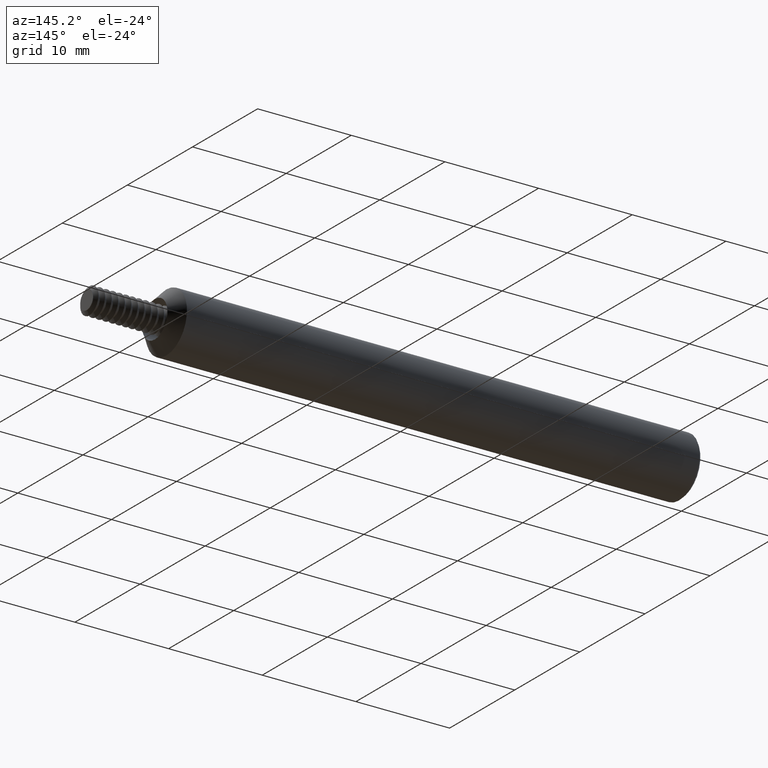
[diagram: clean part render]
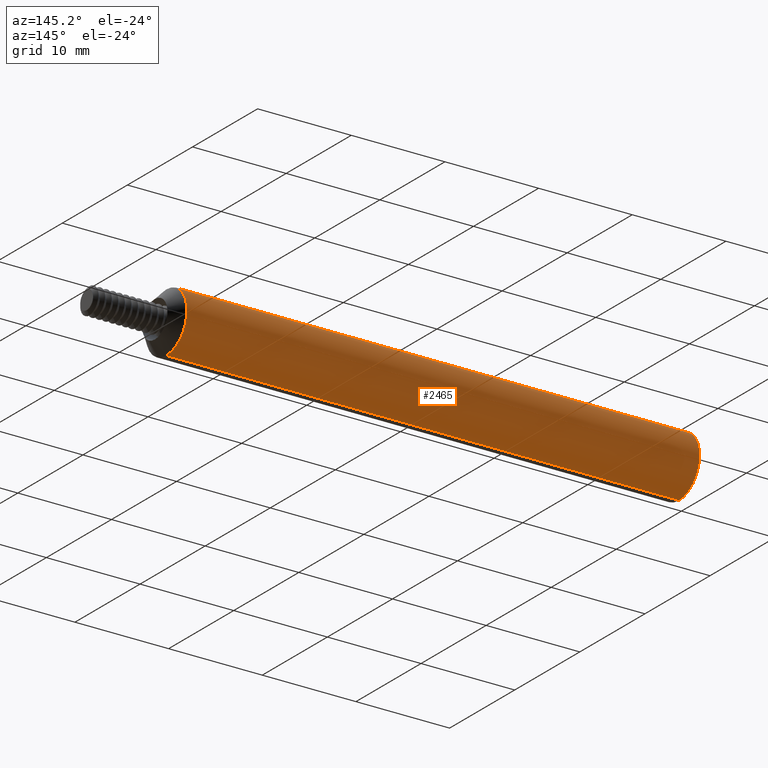
[diagram: same view with one face highlighted and labeled with its STEP entity id]
A machine part, auxiliary view. The second image highlights one B-rep face of the part: STEP entity #2465.
In plain terms, the highlighted cylindrical surface (edge-blend (fillet) strip) has radius 3.1712 mm, axis along (-1, -0, -0).
Its self-contained STEP definition (entity closure, byte-faithful):
#58 = VERTEX_POINT ( 'NONE', #1059 ) ;
#180 = DIRECTION ( 'NONE',  ( 1.000000000000000000, 0.000000000000000000, 0.000000000000000000 ) ) ;
#352 = EDGE_CURVE ( 'NONE', #2665, #527, #956, .T. ) ;
#387 = CARTESIAN_POINT ( 'NONE',  ( 0.009999999999999620304, 1.528971528735470422E-17, 0.1248500000000000026 ) ) ;
#397 = LINE ( 'NONE', #2341, #1662 ) ;
#442 = VECTOR ( 'NONE', #2250, 39.37007874015748143 ) ;
#527 = VERTEX_POINT ( 'NONE', #387 ) ;
#620 = DIRECTION ( 'NONE',  ( -1.000000000000000000, -0.000000000000000000, -0.000000000000000000 ) ) ;
#653 = CIRCLE ( 'NONE', #793, 0.1248500000000000026 ) ;
#725 = FACE_OUTER_BOUND ( 'NONE', #2774, .T. ) ;
#793 = AXIS2_PLACEMENT_3D ( 'NONE', #1678, #2737, #2318 ) ;
#956 = LINE ( 'NONE', #1844, #442 ) ;
#1014 = AXIS2_PLACEMENT_3D ( 'NONE', #1053, #180, #1070 ) ;
#1053 = CARTESIAN_POINT ( 'NONE',  ( 0.009999999999999620304, 0.000000000000000000, 0.000000000000000000 ) ) ;
#1059 = CARTESIAN_POINT ( 'NONE',  ( 2.165000000000000036, 1.528971528735470422E-17, -0.1248500000000000026 ) ) ;
#1070 = DIRECTION ( 'NONE',  ( 0.000000000000000000, 0.000000000000000000, -1.000000000000000000 ) ) ;
#1107 = AXIS2_PLACEMENT_3D ( 'NONE', #2425, #2212, #1128 ) ;
#1128 = DIRECTION ( 'NONE',  ( 0.000000000000000000, 0.000000000000000000, 1.000000000000000000 ) ) ;
#1238 = ORIENTED_EDGE ( 'NONE', *, *, #2256, .T. ) ;
#1351 = CYLINDRICAL_SURFACE ( 'NONE', #1107, 0.1248500000000000026 ) ;
#1533 = CARTESIAN_POINT ( 'NONE',  ( 0.009999999999999620304, 0.000000000000000000, -0.1248500000000000026 ) ) ;
#1662 = VECTOR ( 'NONE', #620, 39.37007874015748143 ) ;
#1678 = CARTESIAN_POINT ( 'NONE',  ( 2.165000000000000036, 0.000000000000000000, 0.000000000000000000 ) ) ;
#1701 = ORIENTED_EDGE ( 'NONE', *, *, #2775, .T. ) ;
#1814 = ORIENTED_EDGE ( 'NONE', *, *, #1925, .T. ) ;
#1844 = CARTESIAN_POINT ( 'NONE',  ( 0.000000000000000000, 0.000000000000000000, 0.1248500000000000026 ) ) ;
#1925 = EDGE_CURVE ( 'NONE', #58, #2336, #397, .T. ) ;
#2121 = ORIENTED_EDGE ( 'NONE', *, *, #352, .F. ) ;
#2212 = DIRECTION ( 'NONE',  ( -1.000000000000000000, -0.000000000000000000, -0.000000000000000000 ) ) ;
#2220 = CIRCLE ( 'NONE', #1014, 0.1248500000000000026 ) ;
#2250 = DIRECTION ( 'NONE',  ( -1.000000000000000000, -0.000000000000000000, -0.000000000000000000 ) ) ;
#2256 = EDGE_CURVE ( 'NONE', #2665, #58, #653, .T. ) ;
#2318 = DIRECTION ( 'NONE',  ( 0.000000000000000000, 0.000000000000000000, 1.000000000000000000 ) ) ;
#2330 = CARTESIAN_POINT ( 'NONE',  ( 2.165000000000000036, 0.000000000000000000, 0.1248500000000000026 ) ) ;
#2336 = VERTEX_POINT ( 'NONE', #1533 ) ;
#2341 = CARTESIAN_POINT ( 'NONE',  ( 0.000000000000000000, 1.528971528735470422E-17, -0.1248500000000000026 ) ) ;
#2425 = CARTESIAN_POINT ( 'NONE',  ( 0.000000000000000000, 0.000000000000000000, 0.000000000000000000 ) ) ;
#2465 = ADVANCED_FACE ( 'NONE', ( #725 ), #1351, .T. ) ;
#2665 = VERTEX_POINT ( 'NONE', #2330 ) ;
#2737 = DIRECTION ( 'NONE',  ( -1.000000000000000000, -0.000000000000000000, -0.000000000000000000 ) ) ;
#2774 = EDGE_LOOP ( 'NONE', ( #1238, #1814, #1701, #2121 ) ) ;
#2775 = EDGE_CURVE ( 'NONE', #2336, #527, #2220, .T. ) ;